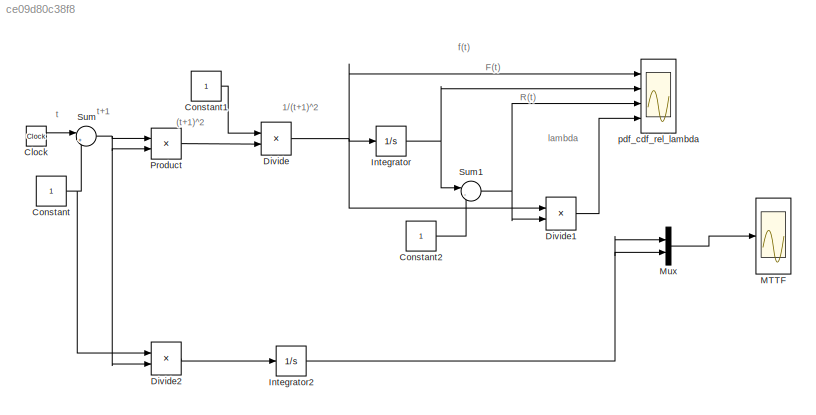
MODEL slx_ce09d80c38f8
KIND model
BLOCK [Clock] Clock
BLOCK [Constant] Constant
BLOCK [Constant] Constant1
BLOCK [Constant] Constant2
BLOCK [Product] Divide
  InputSameDT = off
  Inputs = */
  OutDataTypeStr = Inherit: Inherit via internal rule
  Ports = [2, 1]
BLOCK [Product] Divide1
  InputSameDT = off
  Inputs = */
  OutDataTypeStr = Inherit: Inherit via internal rule
  Ports = [2, 1]
BLOCK [Product] Divide2
  InputSameDT = off
  Inputs = */
  OutDataTypeStr = Inherit: Inherit via internal rule
  Ports = [2, 1]
BLOCK [Integrator] Integrator
  Ports = [1, 1]
BLOCK [Integrator] Integrator2
  Ports = [1, 1]
BLOCK [Scope] MTTF
  Floating = off
  NumInputPorts = 1
  Ports = [1]
  SaveName = ScopeData2
  ShowLegends = off
  YMax = 35
  YMin = 20
  ZoomMode = yonly
BLOCK [Mux] Mux
  DisplayOption = bar
  Inputs = 2
  Ports = [2, 1]
BLOCK [Product] Product
  InputSameDT = off
  OutDataTypeStr = Inherit: Inherit via internal rule
  Ports = [2, 1]
  RndMeth = Floor
  SaturateOnIntegerOverflow = off
BLOCK [Sum] Sum
  IconShape = round
  InputSameDT = off
  Inputs = |++
  OutDataTypeStr = Inherit: Inherit via internal rule
  Ports = [2, 1]
  SaturateOnIntegerOverflow = off
BLOCK [Sum] Sum1
  IconShape = round
  InputSameDT = off
  Inputs = |-+
  OutDataTypeStr = Inherit: Inherit via internal rule
  Ports = [2, 1]
  SaturateOnIntegerOverflow = off
BLOCK [Scope] pdf_cdf_rel_lambda
  Floating = off
  NumInputPorts = 4
  Ports = [4]
  ShowLegends = off
  YMax = 1.1~1.1~1.1~1.1
  YMin = -0.1~-0.1~-0.1~-0.1
  ZoomMode = yonly
ANNOTATION (root): (t+1)^2
ANNOTATION (root): 1/(t+1)^2
ANNOTATION (root): F(t)
ANNOTATION (root): R(t)
ANNOTATION (root): f(t)
ANNOTATION (root): lambda
ANNOTATION (root): t
ANNOTATION (root): t+1
LINE Clock:1 -> Sum:1
LINE Constant1:1 -> Divide:1
LINE Constant2:1 -> Sum1:2
NET Constant:1 -> Divide2:1, Sum:2
LINE Divide1:1 -> pdf_cdf_rel_lambda:4
LINE Divide2:1 -> Integrator2:1
NET Divide:1 -> Divide1:1, Integrator:1, pdf_cdf_rel_lambda:1
NET Integrator2:1 -> Mux:1, Mux:2
NET Integrator:1 -> Sum1:1, pdf_cdf_rel_lambda:2
LINE Mux:1 -> MTTF:1
LINE Product:1 -> Divide:2
NET Sum1:1 -> Divide1:2, pdf_cdf_rel_lambda:3
NET Sum:1 -> Divide2:2, Product:1, Product:2
note: NET lines group one-source signal fan-out (src -> all destinations, sorted); 1:1 wires keep LINE
